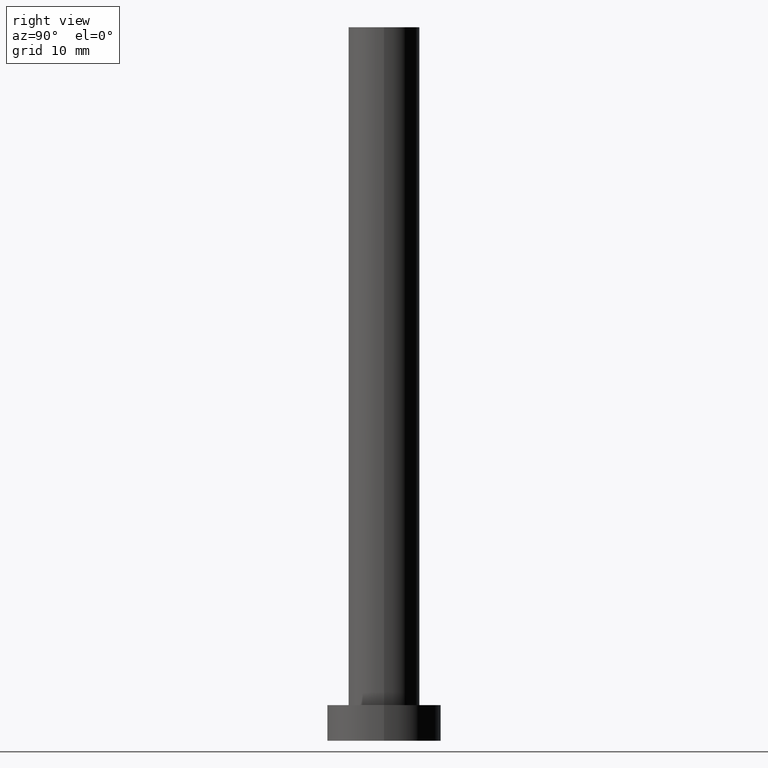
[diagram: clean part render]
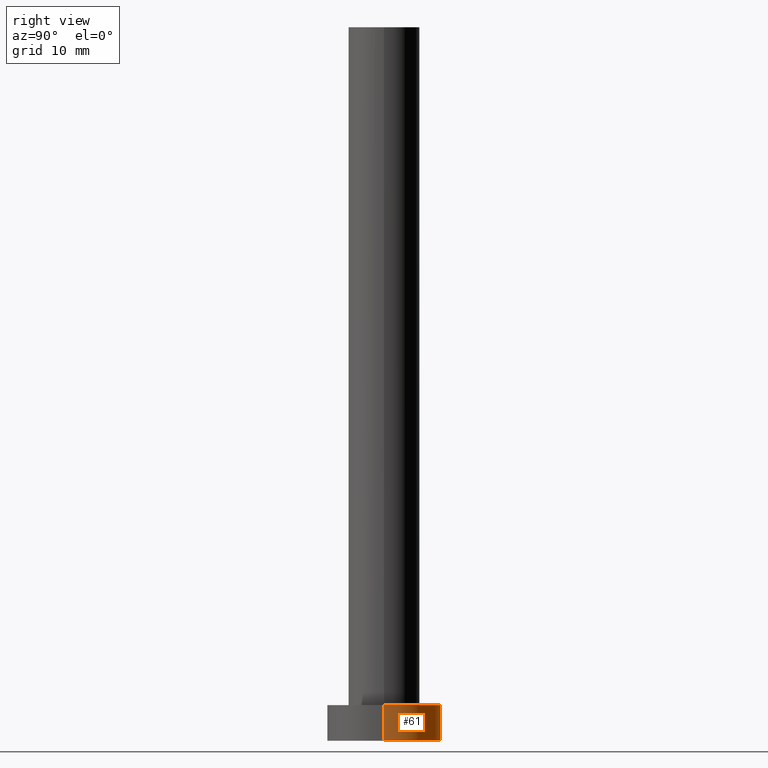
[diagram: same view with one face highlighted and labeled with its STEP entity id]
A machine part, right view. The second image highlights one B-rep face of the part: STEP entity #61.
In plain terms, the highlighted cylindrical surface (partial cylindrical patch) has radius 8 mm, axis along (-0, -0, -1).
Its self-contained STEP definition (entity closure, byte-faithful):
#5 = CARTESIAN_POINT ( 'NONE',  ( -8.000000000000000000, 0.000000000000000000, 5.000000000000000000 ) ) ;
#22 = AXIS2_PLACEMENT_3D ( 'NONE', #164, #189, #150 ) ;
#23 = LINE ( 'NONE', #67, #151 ) ;
#29 = AXIS2_PLACEMENT_3D ( 'NONE', #221, #244, #47 ) ;
#32 = DIRECTION ( 'NONE',  ( 1.000000000000000000, 0.000000000000000000, 0.000000000000000000 ) ) ;
#34 = CIRCLE ( 'NONE', #78, 8.000000000000000000 ) ;
#43 = EDGE_CURVE ( 'NONE', #102, #57, #119, .T. ) ;
#47 = DIRECTION ( 'NONE',  ( 1.000000000000000000, 0.000000000000000000, 0.000000000000000000 ) ) ;
#51 = CARTESIAN_POINT ( 'NONE',  ( 8.000000000000000000, 9.797174393178825657E-16, 0.000000000000000000 ) ) ;
#57 = VERTEX_POINT ( 'NONE', #182 ) ;
#59 = CARTESIAN_POINT ( 'NONE',  ( 0.000000000000000000, 0.000000000000000000, 5.000000000000000000 ) ) ;
#61 = ADVANCED_FACE ( 'NONE', ( #70 ), #219, .T. ) ;
#67 = CARTESIAN_POINT ( 'NONE',  ( 8.000000000000000000, 9.797174393178825657E-16, 5.000000000000000000 ) ) ;
#70 = FACE_OUTER_BOUND ( 'NONE', #251, .T. ) ;
#71 = CARTESIAN_POINT ( 'NONE',  ( -8.000000000000000000, 0.000000000000000000, 5.000000000000000000 ) ) ;
#73 = EDGE_CURVE ( 'NONE', #181, #57, #128, .T. ) ;
#76 = VERTEX_POINT ( 'NONE', #205 ) ;
#78 = AXIS2_PLACEMENT_3D ( 'NONE', #59, #246, #32 ) ;
#81 = VECTOR ( 'NONE', #122, 1000.000000000000000 ) ;
#102 = VERTEX_POINT ( 'NONE', #71 ) ;
#114 = ORIENTED_EDGE ( 'NONE', *, *, #203, .F. ) ;
#119 = LINE ( 'NONE', #5, #81 ) ;
#122 = DIRECTION ( 'NONE',  ( -0.000000000000000000, -0.000000000000000000, -1.000000000000000000 ) ) ;
#125 = EDGE_CURVE ( 'NONE', #76, #181, #23, .T. ) ;
#128 = CIRCLE ( 'NONE', #29, 8.000000000000000000 ) ;
#145 = DIRECTION ( 'NONE',  ( -0.000000000000000000, -0.000000000000000000, -1.000000000000000000 ) ) ;
#150 = DIRECTION ( 'NONE',  ( -1.000000000000000000, 0.000000000000000000, 0.000000000000000000 ) ) ;
#151 = VECTOR ( 'NONE', #145, 1000.000000000000000 ) ;
#164 = CARTESIAN_POINT ( 'NONE',  ( 0.000000000000000000, 0.000000000000000000, 5.000000000000000000 ) ) ;
#174 = ORIENTED_EDGE ( 'NONE', *, *, #73, .T. ) ;
#180 = ORIENTED_EDGE ( 'NONE', *, *, #43, .F. ) ;
#181 = VERTEX_POINT ( 'NONE', #51 ) ;
#182 = CARTESIAN_POINT ( 'NONE',  ( -8.000000000000000000, 0.000000000000000000, 0.000000000000000000 ) ) ;
#189 = DIRECTION ( 'NONE',  ( -0.000000000000000000, -0.000000000000000000, -1.000000000000000000 ) ) ;
#203 = EDGE_CURVE ( 'NONE', #76, #102, #34, .T. ) ;
#205 = CARTESIAN_POINT ( 'NONE',  ( 8.000000000000000000, 9.797174393178825657E-16, 5.000000000000000000 ) ) ;
#219 = CYLINDRICAL_SURFACE ( 'NONE', #22, 8.000000000000000000 ) ;
#221 = CARTESIAN_POINT ( 'NONE',  ( 0.000000000000000000, 0.000000000000000000, 0.000000000000000000 ) ) ;
#244 = DIRECTION ( 'NONE',  ( 0.000000000000000000, 0.000000000000000000, 1.000000000000000000 ) ) ;
#246 = DIRECTION ( 'NONE',  ( 0.000000000000000000, 0.000000000000000000, 1.000000000000000000 ) ) ;
#248 = ORIENTED_EDGE ( 'NONE', *, *, #125, .T. ) ;
#251 = EDGE_LOOP ( 'NONE', ( #114, #248, #174, #180 ) ) ;